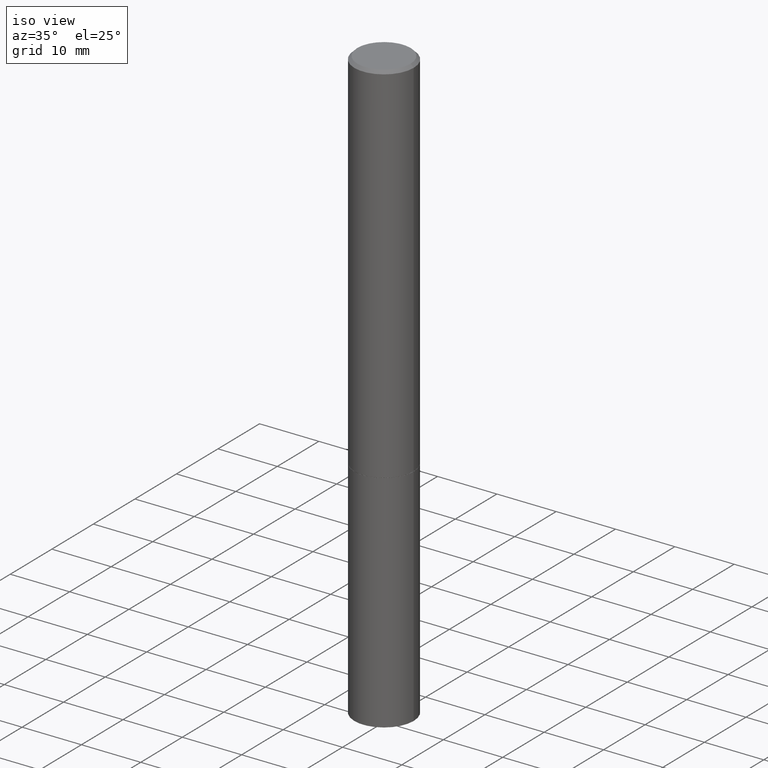
[diagram: clean part render]
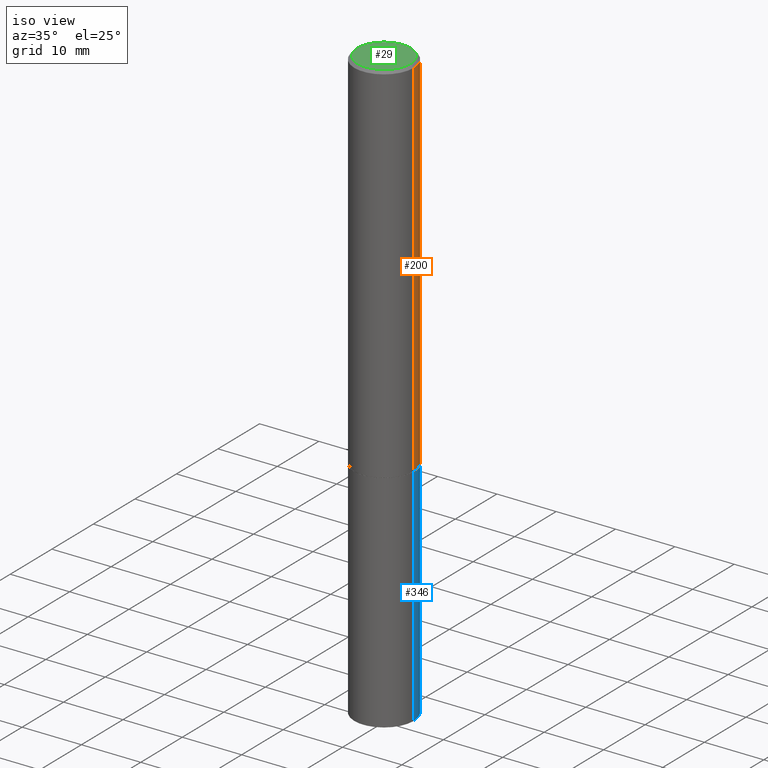
[diagram: same view with three faces highlighted in distinct colors, each labeled with its STEP entity id]
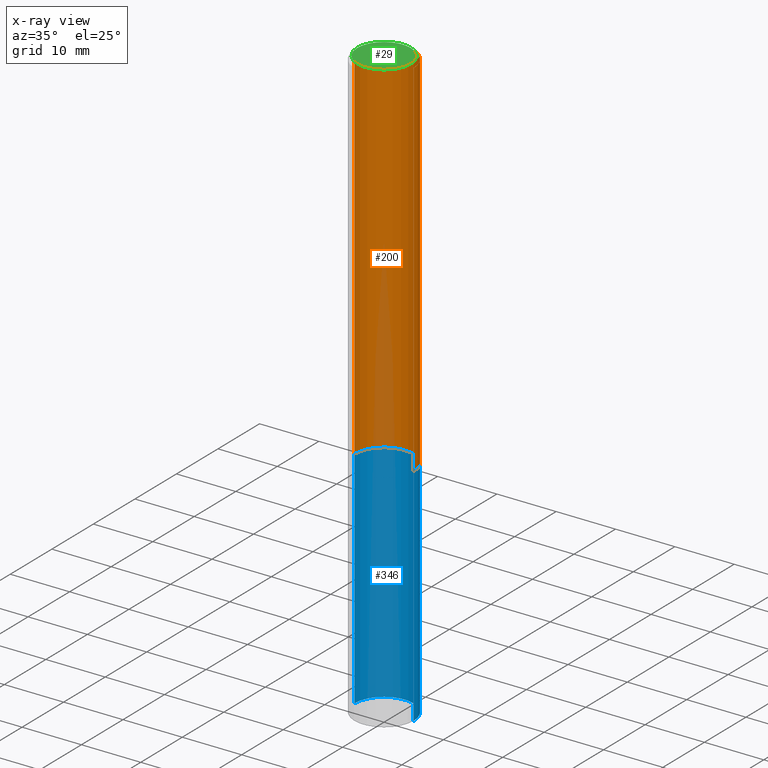
[diagram: x-ray of the same camera — body ghosted, the three highlighted faces saturated]
A machine part, iso view with three faces highlighted in distinct colors.
The next image is the same camera in x-ray (body ghosted, the three faces saturated) — at least one of them is partly hidden behind the body in this view.
Their STEP definitions:

[orange] entity #200 — the highlighted cylindrical surface (edge-blend (fillet) strip) has radius 5 mm, axis along (-0, 0, 1).
#1 = CARTESIAN_POINT ( 'NONE',  ( 5.966699340211114556E-29, -8.518865318643389958E-15, -2.439899999999999736 ) ) ;
#9 = VERTEX_POINT ( 'NONE', #83 ) ;
#14 = EDGE_CURVE ( 'NONE', #209, #23, #259, .T. ) ;
#15 = DIRECTION ( 'NONE',  ( 1.000000000000000000, -6.982962677686266711E-15, 0.000000000000000000 ) ) ;
#23 = VERTEX_POINT ( 'NONE', #361 ) ;
#28 = DIRECTION ( 'NONE',  ( 1.000000000000000000, -6.982962677686266711E-15, 4.876176775795935793E-29 ) ) ;
#33 = AXIS2_PLACEMENT_3D ( 'NONE', #1, #245, #15 ) ;
#56 = ORIENTED_EDGE ( 'NONE', *, *, #293, .F. ) ;
#74 = CARTESIAN_POINT ( 'NONE',  ( 4.890937612370278413E-31, -6.982962677686297772E-17, -0.02000000000000002123 ) ) ;
#82 = AXIS2_PLACEMENT_3D ( 'NONE', #176, #237, #28 ) ;
#83 = CARTESIAN_POINT ( 'NONE',  ( 0.1968500000000000527, -9.893461521745931567E-15, -2.439899999999999736 ) ) ;
#89 = LINE ( 'NONE', #147, #225 ) ;
#91 = FACE_OUTER_BOUND ( 'NONE', #177, .T. ) ;
#115 = CYLINDRICAL_SURFACE ( 'NONE', #82, 0.1968499999999998307 ) ;
#147 = CARTESIAN_POINT ( 'NONE',  ( 0.1968499999999998307, -1.374596203102540425E-15, 9.598753983154291049E-30 ) ) ;
#162 = ORIENTED_EDGE ( 'NONE', *, *, #226, .F. ) ;
#176 = CARTESIAN_POINT ( 'NONE',  ( 0.000000000000000000, 0.000000000000000000, 0.000000000000000000 ) ) ;
#177 = EDGE_LOOP ( 'NONE', ( #212, #267, #56, #162 ) ) ;
#190 = VECTOR ( 'NONE', #307, 39.37007874015748143 ) ;
#200 = ADVANCED_FACE ( 'NONE', ( #91 ), #115, .T. ) ;
#209 = VERTEX_POINT ( 'NONE', #318 ) ;
#211 = CARTESIAN_POINT ( 'NONE',  ( 0.1968499999999996364, -1.420318657638186558E-15, -0.02000000000000002123 ) ) ;
#212 = ORIENTED_EDGE ( 'NONE', *, *, #281, .T. ) ;
#215 = VERTEX_POINT ( 'NONE', #211 ) ;
#225 = VECTOR ( 'NONE', #295, 39.37007874015748143 ) ;
#226 = EDGE_CURVE ( 'NONE', #9, #215, #89, .T. ) ;
#237 = DIRECTION ( 'NONE',  ( -2.445468806185136597E-29, 3.491481338843145583E-15, 1.000000000000000000 ) ) ;
#244 = DIRECTION ( 'NONE',  ( 1.000000000000000000, -6.982962677686266711E-15, 0.000000000000000000 ) ) ;
#245 = DIRECTION ( 'NONE',  ( -2.445468806185136597E-29, 3.491481338843145583E-15, 1.000000000000000000 ) ) ;
#250 = CIRCLE ( 'NONE', #33, 0.1968500000000000527 ) ;
#251 = CARTESIAN_POINT ( 'NONE',  ( -0.1968499999999998307, 1.398703375343756013E-15, -9.682923725166775270E-30 ) ) ;
#259 = LINE ( 'NONE', #251, #190 ) ;
#267 = ORIENTED_EDGE ( 'NONE', *, *, #14, .T. ) ;
#275 = DIRECTION ( 'NONE',  ( -2.445468806185136597E-29, 3.491481338843145583E-15, 1.000000000000000000 ) ) ;
#281 = EDGE_CURVE ( 'NONE', #9, #209, #250, .T. ) ;
#293 = EDGE_CURVE ( 'NONE', #215, #23, #342, .T. ) ;
#295 = DIRECTION ( 'NONE',  ( -2.445468806185136877E-29, 3.491481338843145188E-15, 1.000000000000000000 ) ) ;
#297 = AXIS2_PLACEMENT_3D ( 'NONE', #74, #275, #244 ) ;
#307 = DIRECTION ( 'NONE',  ( -2.445468806185136877E-29, 3.491481338843145188E-15, 1.000000000000000000 ) ) ;
#318 = CARTESIAN_POINT ( 'NONE',  ( -0.1968500000000000527, -2.895644097366364896E-15, -2.439899999999999736 ) ) ;
#342 = CIRCLE ( 'NONE', #297, 0.1968499999999996364 ) ;
#361 = CARTESIAN_POINT ( 'NONE',  ( -0.1968499999999996364, 1.304766576325675944E-15, -0.02000000000000002123 ) ) ;

[blue] entity #346 — the highlighted cylindrical surface (edge-blend (fillet) strip) has radius 5 mm, axis along (-0, 0, 1).
#21 = AXIS2_PLACEMENT_3D ( 'NONE', #345, #324, #207 ) ;
#31 = VERTEX_POINT ( 'NONE', #258 ) ;
#36 = ORIENTED_EDGE ( 'NONE', *, *, #205, .T. ) ;
#54 = CIRCLE ( 'NONE', #21, 0.1968500000000000250 ) ;
#58 = EDGE_LOOP ( 'NONE', ( #36, #344, #172, #179 ) ) ;
#60 = VERTEX_POINT ( 'NONE', #108 ) ;
#63 = DIRECTION ( 'NONE',  ( -2.445468806185136877E-29, 3.491481338843145188E-15, 1.000000000000000000 ) ) ;
#64 = VERTEX_POINT ( 'NONE', #192 ) ;
#69 = LINE ( 'NONE', #341, #137 ) ;
#77 = EDGE_CURVE ( 'NONE', #60, #31, #312, .T. ) ;
#92 = DIRECTION ( 'NONE',  ( -2.445468806185136597E-29, 3.491481338843145583E-15, 1.000000000000000000 ) ) ;
#108 = CARTESIAN_POINT ( 'NONE',  ( 0.1968500000000000250, -9.896953003084774574E-15, -2.440900000000000070 ) ) ;
#119 = DIRECTION ( 'NONE',  ( -2.445468806185136877E-29, 3.491481338843145188E-15, 1.000000000000000000 ) ) ;
#130 = DIRECTION ( 'NONE',  ( -2.445468806185136597E-29, 3.491481338843145583E-15, 1.000000000000000000 ) ) ;
#137 = VECTOR ( 'NONE', #119, 39.37007874015748143 ) ;
#146 = EDGE_CURVE ( 'NONE', #153, #60, #264, .T. ) ;
#152 = CARTESIAN_POINT ( 'NONE',  ( 0.1968500000000000250, -1.374596203102541608E-15, 9.598753983154300858E-30 ) ) ;
#153 = VERTEX_POINT ( 'NONE', #348 ) ;
#154 = AXIS2_PLACEMENT_3D ( 'NONE', #282, #92, #316 ) ;
#172 = ORIENTED_EDGE ( 'NONE', *, *, #77, .F. ) ;
#179 = ORIENTED_EDGE ( 'NONE', *, *, #146, .F. ) ;
#192 = CARTESIAN_POINT ( 'NONE',  ( -0.1968500000000000250, -9.735456040160091980E-15, -3.937000000000000277 ) ) ;
#205 = EDGE_CURVE ( 'NONE', #153, #64, #54, .T. ) ;
#207 = DIRECTION ( 'NONE',  ( 1.000000000000000000, -6.982962677686267499E-15, 0.000000000000000000 ) ) ;
#213 = EDGE_CURVE ( 'NONE', #64, #31, #69, .T. ) ;
#224 = FACE_OUTER_BOUND ( 'NONE', #58, .T. ) ;
#246 = VECTOR ( 'NONE', #63, 39.37007874015748143 ) ;
#258 = CARTESIAN_POINT ( 'NONE',  ( -0.1968500000000000250, -9.735456040160091980E-15, -2.440900000000000070 ) ) ;
#264 = LINE ( 'NONE', #152, #246 ) ;
#273 = DIRECTION ( 'NONE',  ( 1.000000000000000000, -6.982962677686265922E-15, 4.876176775795935793E-29 ) ) ;
#282 = CARTESIAN_POINT ( 'NONE',  ( 5.969144809017299038E-29, -8.522356799982232966E-15, -2.440900000000000070 ) ) ;
#298 = CARTESIAN_POINT ( 'NONE',  ( 0.000000000000000000, 0.000000000000000000, 0.000000000000000000 ) ) ;
#306 = AXIS2_PLACEMENT_3D ( 'NONE', #298, #130, #273 ) ;
#312 = CIRCLE ( 'NONE', #154, 0.1968500000000000250 ) ;
#316 = DIRECTION ( 'NONE',  ( 1.000000000000000000, -6.982962677686262766E-15, 0.000000000000000000 ) ) ;
#324 = DIRECTION ( 'NONE',  ( -2.445468806185136597E-29, 3.491481338843145583E-15, 1.000000000000000000 ) ) ;
#341 = CARTESIAN_POINT ( 'NONE',  ( -0.1968500000000000250, 1.398703375343757393E-15, -9.682923725166783677E-30 ) ) ;
#344 = ORIENTED_EDGE ( 'NONE', *, *, #213, .T. ) ;
#345 = CARTESIAN_POINT ( 'NONE',  ( 9.627810689950883669E-29, -1.374596203102546341E-14, -3.937000000000000277 ) ) ;
#346 = ADVANCED_FACE ( 'NONE', ( #224 ), #357, .T. ) ;
#348 = CARTESIAN_POINT ( 'NONE',  ( 0.1968500000000000250, -1.512055823412800660E-14, -3.937000000000000277 ) ) ;
#357 = CYLINDRICAL_SURFACE ( 'NONE', #306, 0.1968500000000000250 ) ;

[green] entity #29 — the highlighted planar face has unit normal (0, -0, -1).
#11 = CARTESIAN_POINT ( 'NONE',  ( 0.1768499999999996464, -1.316798864272039577E-15, 4.268512490109333727E-18 ) ) ;
#25 = DIRECTION ( 'NONE',  ( -1.000000000000000000, 6.982962677686265922E-15, -4.876176775795935793E-29 ) ) ;
#29 = ADVANCED_FACE ( 'NONE', ( #335 ), #113, .F. ) ;
#30 = CARTESIAN_POINT ( 'NONE',  ( -0.1768499999999996464, 1.269851762937245083E-15, 4.268512490091652920E-18 ) ) ;
#70 = EDGE_LOOP ( 'NONE', ( #230, #347 ) ) ;
#86 = VERTEX_POINT ( 'NONE', #30 ) ;
#111 = CIRCLE ( 'NONE', #220, 0.1768499999999996464 ) ;
#113 = PLANE ( 'NONE',  #210 ) ;
#131 = DIRECTION ( 'NONE',  ( -2.445468806185136597E-29, 3.491481338843145583E-15, 1.000000000000000000 ) ) ;
#149 = DIRECTION ( 'NONE',  ( -2.445468806185136597E-29, 3.491481338843145583E-15, 1.000000000000000000 ) ) ;
#169 = CIRCLE ( 'NONE', #279, 0.1768499999999996464 ) ;
#197 = DIRECTION ( 'NONE',  ( 2.438088387897960049E-29, -3.491481338843145188E-15, -1.000000000000000000 ) ) ;
#210 = AXIS2_PLACEMENT_3D ( 'NONE', #227, #197, #25 ) ;
#218 = DIRECTION ( 'NONE',  ( 1.000000000000000000, -6.982962677686266711E-15, 4.875932113059887537E-29 ) ) ;
#220 = AXIS2_PLACEMENT_3D ( 'NONE', #352, #131, #218 ) ;
#227 = CARTESIAN_POINT ( 'NONE',  ( 1.234936949548813631E-15, 0.1768499999999996464, -6.153342185293588703E-16 ) ) ;
#230 = ORIENTED_EDGE ( 'NONE', *, *, #243, .T. ) ;
#243 = EDGE_CURVE ( 'NONE', #86, #304, #169, .T. ) ;
#268 = DIRECTION ( 'NONE',  ( 1.000000000000000000, -6.982962677686266711E-15, 4.875932113059887537E-29 ) ) ;
#279 = AXIS2_PLACEMENT_3D ( 'NONE', #294, #149, #268 ) ;
#294 = CARTESIAN_POINT ( 'NONE',  ( -1.043851414335219820E-46, 1.490343170380447200E-32, 4.268512490100411279E-18 ) ) ;
#304 = VERTEX_POINT ( 'NONE', #11 ) ;
#335 = FACE_OUTER_BOUND ( 'NONE', #70, .T. ) ;
#347 = ORIENTED_EDGE ( 'NONE', *, *, #351, .T. ) ;
#351 = EDGE_CURVE ( 'NONE', #304, #86, #111, .T. ) ;
#352 = CARTESIAN_POINT ( 'NONE',  ( -1.043851414335219820E-46, 1.490343170380447200E-32, 4.268512490100411279E-18 ) ) ;